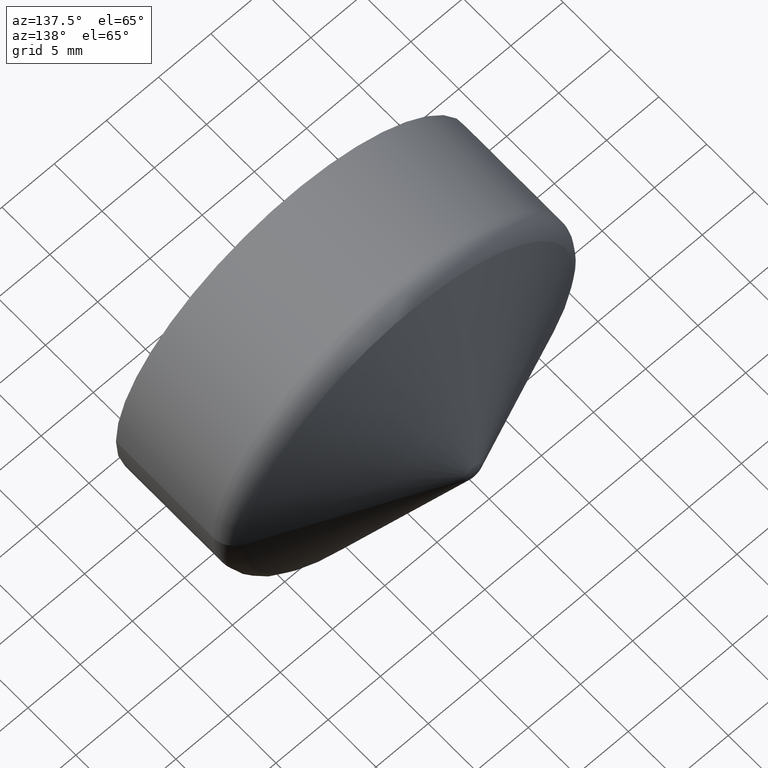
[diagram: clean part render]
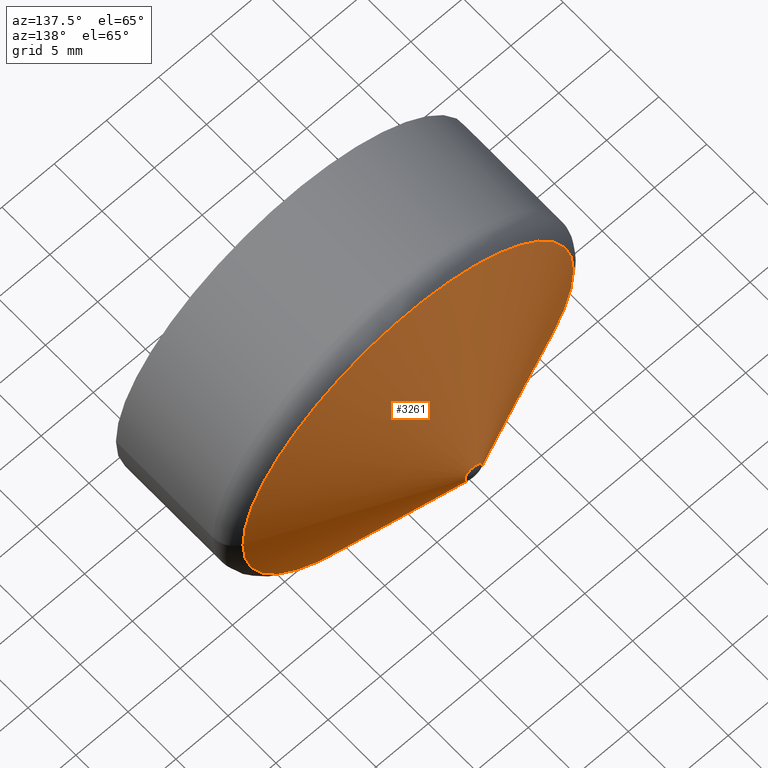
[diagram: same view with one face highlighted and labeled with its STEP entity id]
A machine part, auxiliary view. The second image highlights one B-rep face of the part: STEP entity #3261.
In plain terms, the highlighted conical surface has half-angle 65.548 deg.
Its self-contained STEP definition (entity closure, byte-faithful):
#558 = EDGE_LOOP ( 'NONE', ( #4096 ) ) ;
#1040 = DIRECTION ( 'NONE',  ( 1.000000000000000000, 0.0000000000000000000, 0.0000000000000000000 ) ) ;
#1464 = AXIS2_PLACEMENT_3D ( 'NONE', #7422, #8860, #3276 ) ;
#3109 = EDGE_CURVE ( 'NONE', #3843, #3843, #4042, .T. ) ;
#3178 = DIRECTION ( 'NONE',  ( 2.041077998578925000E-017, -1.000000000000000000, -0.0000000000000000000 ) ) ;
#3261 = ADVANCED_FACE ( 'NONE', ( #4891, #7940 ), #4697, .T. ) ;
#3276 = DIRECTION ( 'NONE',  ( 1.000000000000000000, 0.0000000000000000000, 0.0000000000000000000 ) ) ;
#3843 = VERTEX_POINT ( 'NONE', #6689 ) ;
#4042 = CIRCLE ( 'NONE', #4092, 0.8278512813384045800 ) ;
#4092 = AXIS2_PLACEMENT_3D ( 'NONE', #5225, #3178, #1040 ) ;
#4096 = ORIENTED_EDGE ( 'NONE', *, *, #5135, .F. ) ;
#4153 = EDGE_LOOP ( 'NONE', ( #7661 ) ) ;
#4697 = CONICAL_SURFACE ( 'NONE', #1464, 15.82785128133840800, 1.144034052643032800 ) ;
#4891 = FACE_BOUND ( 'NONE', #4153, .T. ) ;
#4985 = CARTESIAN_POINT ( 'NONE',  ( 1.428754599005247300E-016, 12.00000000000000000, 0.0000000000000000000 ) ) ;
#5135 = EDGE_CURVE ( 'NONE', #7537, #7537, #6067, .T. ) ;
#5225 = CARTESIAN_POINT ( 'NONE',  ( 3.661257285350248100E-018, 18.82062139281794400, 0.0000000000000000000 ) ) ;
#5248 = CARTESIAN_POINT ( 'NONE',  ( 15.82785128133840800, 12.00000000000000000, 0.0000000000000000000 ) ) ;
#6067 = CIRCLE ( 'NONE', #7455, 15.82785128133840800 ) ;
#6217 = DIRECTION ( 'NONE',  ( 1.000000000000000000, 0.0000000000000000000, 0.0000000000000000000 ) ) ;
#6689 = CARTESIAN_POINT ( 'NONE',  ( 0.8278512813384045800, 18.82062139281794400, 0.0000000000000000000 ) ) ;
#7040 = DIRECTION ( 'NONE',  ( 2.041077998578925000E-017, -1.000000000000000000, -0.0000000000000000000 ) ) ;
#7422 = CARTESIAN_POINT ( 'NONE',  ( 1.428754599005247300E-016, 12.00000000000000000, 0.0000000000000000000 ) ) ;
#7455 = AXIS2_PLACEMENT_3D ( 'NONE', #4985, #7040, #6217 ) ;
#7537 = VERTEX_POINT ( 'NONE', #5248 ) ;
#7661 = ORIENTED_EDGE ( 'NONE', *, *, #3109, .T. ) ;
#7940 = FACE_OUTER_BOUND ( 'NONE', #558, .T. ) ;
#8860 = DIRECTION ( 'NONE',  ( 2.041077998578925000E-017, -1.000000000000000000, -0.0000000000000000000 ) ) ;